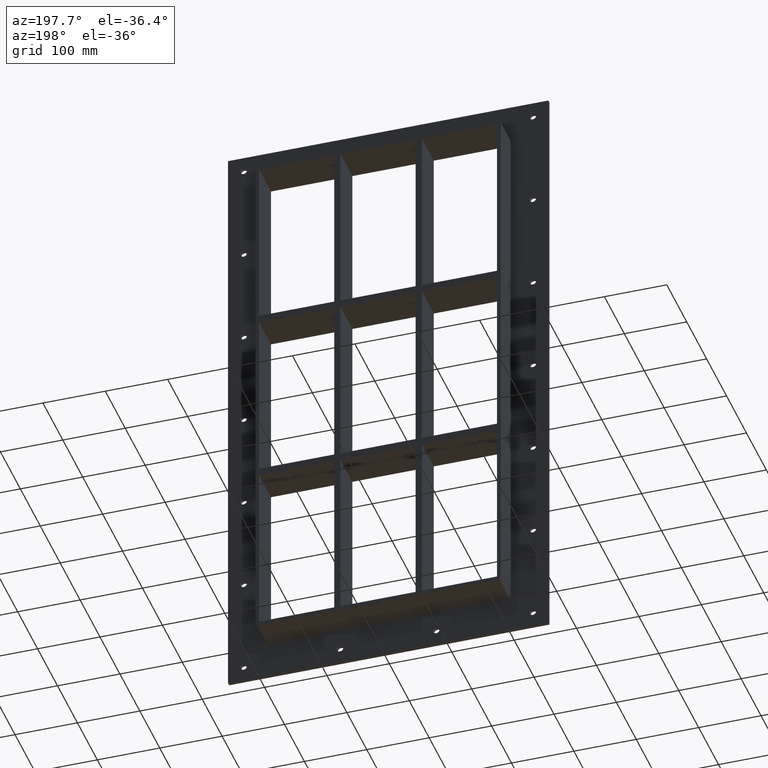
[diagram: clean part render]
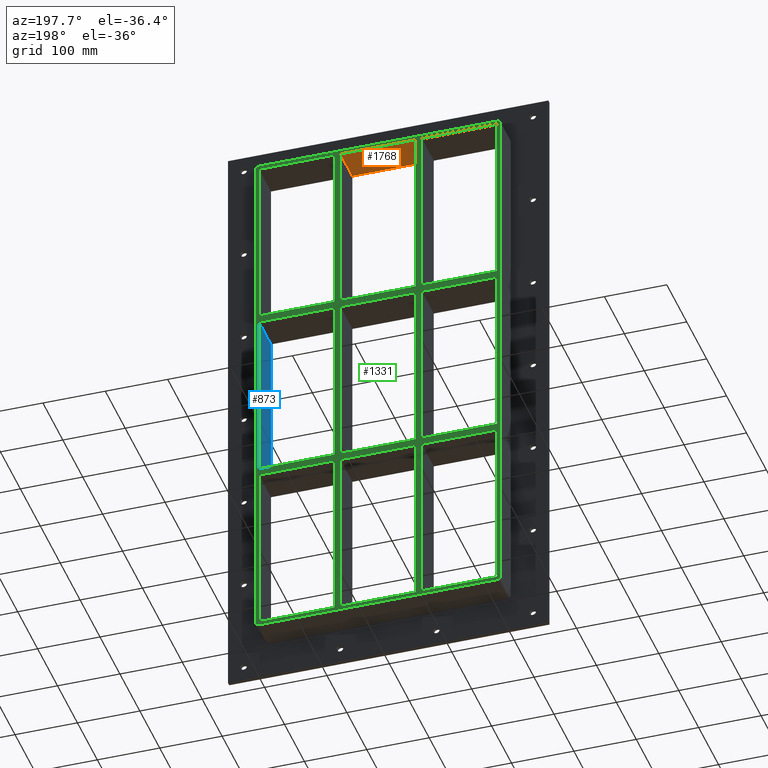
[diagram: same view with three faces highlighted in distinct colors, each labeled with its STEP entity id]
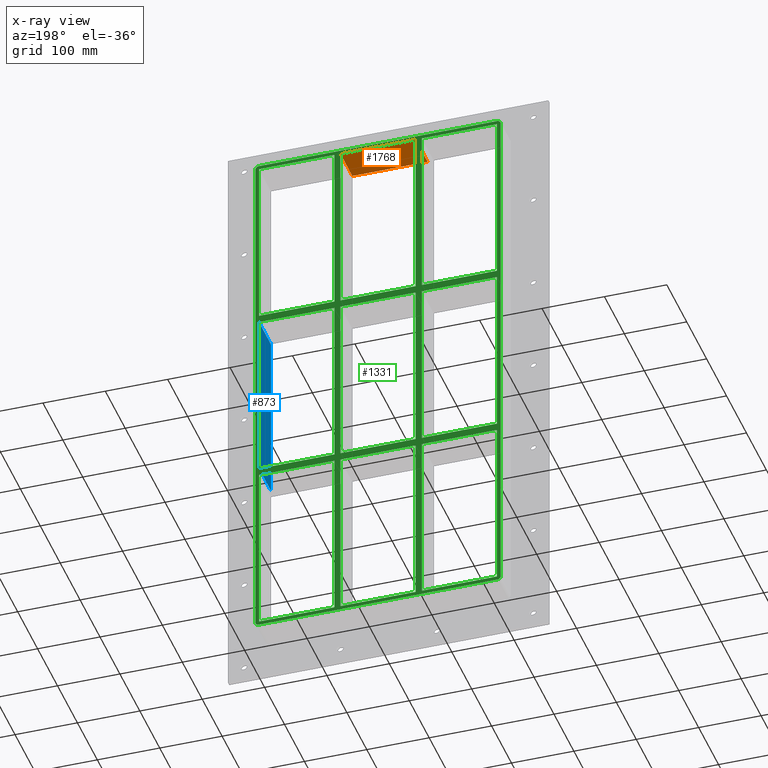
[diagram: x-ray of the same camera — body ghosted, the three highlighted faces saturated]
A machine part, auxiliary view with three faces highlighted in distinct colors.
The next image is the same camera in x-ray (body ghosted, the three faces saturated) — at least one of them is partly hidden behind the body in this view.
Their STEP definitions:

[orange] entity #1768 — the highlighted planar face has unit normal (0, 0, 1).
#911=CARTESIAN_POINT('',(60.249999999997819,-3.0,429.00000000000006));
#912=VERTEX_POINT('',#911);
#919=CARTESIAN_POINT('',(60.249999999997819,57.0,429.00000000000006));
#920=VERTEX_POINT('',#919);
#921=CARTESIAN_POINT('',(60.249999999997819,57.000000000000007,429.00000000000006));
#922=DIRECTION('',(0.0,-1.0,0.0));
#923=VECTOR('',#922,60.000000000000007);
#924=LINE('',#921,#923);
#925=EDGE_CURVE('',#920,#912,#924,.T.);
#1035=CARTESIAN_POINT('',(-60.249999999996362,57.0,429.00000000000006));
#1036=VERTEX_POINT('',#1035);
#1043=CARTESIAN_POINT('',(-60.249999999996362,-3.0,429.00000000000006));
#1044=VERTEX_POINT('',#1043);
#1045=CARTESIAN_POINT('',(-60.249999999996362,-3.0,429.00000000000006));
#1046=DIRECTION('',(0.0,1.0,0.0));
#1047=VECTOR('',#1046,60.000000000000007);
#1048=LINE('',#1045,#1047);
#1049=EDGE_CURVE('',#1044,#1036,#1048,.T.);
#1165=CARTESIAN_POINT('',(60.249999999997826,57.0,429.00000000000006));
#1166=DIRECTION('',(-1.0,0.0,0.0));
#1167=VECTOR('',#1166,120.49999999999419);
#1168=LINE('',#1165,#1167);
#1169=EDGE_CURVE('',#920,#1036,#1168,.T.);
#1607=CARTESIAN_POINT('',(-60.249999999996362,-3.0,429.00000000000006));
#1608=DIRECTION('',(1.0,0.0,0.0));
#1609=VECTOR('',#1608,120.49999999999419);
#1610=LINE('',#1607,#1609);
#1611=EDGE_CURVE('',#1044,#912,#1610,.T.);
#1757=CARTESIAN_POINT('',(-190.75000000000003,0.0,429.00000000000006));
#1758=DIRECTION('',(0.0,0.0,1.0));
#1759=DIRECTION('',(1.0,0.0,0.0));
#1760=AXIS2_PLACEMENT_3D('',#1757,#1758,#1759);
#1761=PLANE('',#1760);
#1762=ORIENTED_EDGE('',*,*,#925,.T.);
#1763=ORIENTED_EDGE('',*,*,#1611,.F.);
#1764=ORIENTED_EDGE('',*,*,#1049,.T.);
#1765=ORIENTED_EDGE('',*,*,#1169,.F.);
#1766=EDGE_LOOP('',(#1762,#1763,#1764,#1765));
#1767=FACE_OUTER_BOUND('',#1766,.T.);
#1768=ADVANCED_FACE('',(#1767),#1761,.F.);

[blue] entity #873 — the highlighted planar face has unit normal (1, 0, 0).
#627=CARTESIAN_POINT('',(190.75000000000728,57.0,138.9999999999898));
#628=VERTEX_POINT('',#627);
#635=CARTESIAN_POINT('',(190.75000000000728,-3.0,138.9999999999898));
#636=VERTEX_POINT('',#635);
#637=CARTESIAN_POINT('',(190.75000000000011,-3.0,138.99999999998983));
#638=DIRECTION('',(0.0,1.0,0.0));
#639=VECTOR('',#638,60.000000000000007);
#640=LINE('',#637,#639);
#641=EDGE_CURVE('',#636,#628,#640,.T.);
#843=CARTESIAN_POINT('',(190.75000000000011,0.0,429.00000000000006));
#844=DIRECTION('',(1.0,0.0,0.0));
#845=DIRECTION('',(0.0,0.0,-1.0));
#846=AXIS2_PLACEMENT_3D('',#843,#844,#845);
#847=PLANE('',#846);
#848=ORIENTED_EDGE('',*,*,#641,.T.);
#849=CARTESIAN_POINT('',(190.75000000000023,57.0,-138.99999999999977));
#850=VERTEX_POINT('',#849);
#851=CARTESIAN_POINT('',(190.75000000000011,57.0,-138.99999999999974));
#852=DIRECTION('',(0.0,0.0,1.0));
#853=VECTOR('',#852,277.99999999998954);
#854=LINE('',#851,#853);
#855=EDGE_CURVE('',#850,#628,#854,.T.);
#856=ORIENTED_EDGE('',*,*,#855,.F.);
#857=CARTESIAN_POINT('',(190.75000000000023,-3.0,-138.99999999999977));
#858=VERTEX_POINT('',#857);
#859=CARTESIAN_POINT('',(190.75000000000011,57.000000000000007,-138.99999999999977));
#860=DIRECTION('',(0.0,-1.0,0.0));
#861=VECTOR('',#860,60.000000000000007);
#862=LINE('',#859,#861);
#863=EDGE_CURVE('',#850,#858,#862,.T.);
#864=ORIENTED_EDGE('',*,*,#863,.T.);
#865=CARTESIAN_POINT('',(190.75000000000011,-3.0,138.99999999998983));
#866=DIRECTION('',(0.0,0.0,-1.0));
#867=VECTOR('',#866,277.99999999998954);
#868=LINE('',#865,#867);
#869=EDGE_CURVE('',#636,#858,#868,.T.);
#870=ORIENTED_EDGE('',*,*,#869,.F.);
#871=EDGE_LOOP('',(#848,#856,#864,#870));
#872=FACE_OUTER_BOUND('',#871,.T.);
#873=ADVANCED_FACE('',(#872),#847,.F.);

[green] entity #1331 — the highlighted planar face has unit normal (0, 1, 0).
#579=CARTESIAN_POINT('',(-70.250000000002132,57.0,138.99999999998983));
#580=VERTEX_POINT('',#579);
#595=CARTESIAN_POINT('',(-190.75000000000045,57.0,138.99999999998983));
#596=VERTEX_POINT('',#595);
#603=CARTESIAN_POINT('',(-70.250000000002103,57.0,138.9999999999898));
#604=DIRECTION('',(-1.0,0.0,0.0));
#605=VECTOR('',#604,120.49999999999835);
#606=LINE('',#603,#605);
#607=EDGE_CURVE('',#580,#596,#606,.T.);
#617=CARTESIAN_POINT('',(70.250000000003638,57.0,138.9999999999898));
#618=VERTEX_POINT('',#617);
#627=CARTESIAN_POINT('',(190.75000000000728,57.0,138.9999999999898));
#628=VERTEX_POINT('',#627);
#629=CARTESIAN_POINT('',(190.75000000000728,57.0,138.9999999999898));
#630=DIRECTION('',(-1.0,0.0,0.0));
#631=VECTOR('',#630,120.50000000000364);
#632=LINE('',#629,#631);
#633=EDGE_CURVE('',#628,#618,#632,.T.);
#659=CARTESIAN_POINT('',(60.249999999997868,57.0,138.9999999999898));
#660=VERTEX_POINT('',#659);
#675=CARTESIAN_POINT('',(-60.249999999996362,57.0,138.99999999998983));
#676=VERTEX_POINT('',#675);
#683=CARTESIAN_POINT('',(60.249999999997868,57.0,138.9999999999898));
#684=DIRECTION('',(-1.0,0.0,0.0));
#685=VECTOR('',#684,120.49999999999423);
#686=LINE('',#683,#685);
#687=EDGE_CURVE('',#660,#676,#686,.T.);
#697=CARTESIAN_POINT('',(-70.250000000002132,57.0,151.0));
#698=VERTEX_POINT('',#697);
#707=CARTESIAN_POINT('',(-190.75000000000045,57.0,150.99999999999994));
#708=VERTEX_POINT('',#707);
#709=CARTESIAN_POINT('',(-190.75000000000045,57.0,150.99999999999994));
#710=DIRECTION('',(1.0,0.0,0.0));
#711=VECTOR('',#710,120.49999999999832);
#712=LINE('',#709,#711);
#713=EDGE_CURVE('',#708,#698,#712,.T.);
#739=CARTESIAN_POINT('',(70.250000000003638,57.0,151.00000000000014));
#740=VERTEX_POINT('',#739);
#755=CARTESIAN_POINT('',(190.75000000000023,57.0,151.00000000000023));
#756=VERTEX_POINT('',#755);
#763=CARTESIAN_POINT('',(70.250000000003638,57.0,151.00000000000014));
#764=DIRECTION('',(1.0,0.0,0.0));
#765=VECTOR('',#764,120.49999999999659);
#766=LINE('',#763,#765);
#767=EDGE_CURVE('',#740,#756,#766,.T.);
#777=CARTESIAN_POINT('',(60.24999999999789,57.0,151.00000000000014));
#778=VERTEX_POINT('',#777);
#787=CARTESIAN_POINT('',(-60.249999999996362,57.0,151.00000000000006));
#788=VERTEX_POINT('',#787);
#789=CARTESIAN_POINT('',(-60.249999999996362,57.0,151.00000000000003));
#790=DIRECTION('',(1.0,0.0,0.0));
#791=VECTOR('',#790,120.49999999999426);
#792=LINE('',#789,#791);
#793=EDGE_CURVE('',#788,#778,#792,.T.);
#818=CARTESIAN_POINT('',(-190.75000000000003,57.0,429.00000000000006));
#819=VERTEX_POINT('',#818);
#820=CARTESIAN_POINT('',(-190.75000000000003,57.0,429.00000000000011));
#821=DIRECTION('',(0.0,0.0,-1.0));
#822=VECTOR('',#821,278.00000000000011);
#823=LINE('',#820,#822);
#824=EDGE_CURVE('',#819,#708,#823,.T.);
#849=CARTESIAN_POINT('',(190.75000000000023,57.0,-138.99999999999977));
#850=VERTEX_POINT('',#849);
#851=CARTESIAN_POINT('',(190.75000000000011,57.0,-138.99999999999974));
#852=DIRECTION('',(0.0,0.0,1.0));
#853=VECTOR('',#852,277.99999999998954);
#854=LINE('',#851,#853);
#855=EDGE_CURVE('',#850,#628,#854,.T.);
#888=CARTESIAN_POINT('',(190.75000000000011,57.0,429.00000000000006));
#889=VERTEX_POINT('',#888);
#896=CARTESIAN_POINT('',(190.75000000000011,57.0,151.00000000000023));
#897=DIRECTION('',(0.0,0.0,1.0));
#898=VECTOR('',#897,277.99999999999983);
#899=LINE('',#896,#898);
#900=EDGE_CURVE('',#756,#889,#899,.T.);
#919=CARTESIAN_POINT('',(60.249999999997819,57.0,429.00000000000006));
#920=VERTEX_POINT('',#919);
#927=CARTESIAN_POINT('',(60.249999999997875,57.0,151.00000000000017));
#928=DIRECTION('',(0.0,0.0,1.0));
#929=VECTOR('',#928,277.99999999999989);
#930=LINE('',#927,#929);
#931=EDGE_CURVE('',#778,#920,#930,.T.);
#942=CARTESIAN_POINT('',(70.250000000003638,57.0,429.00000000000006));
#943=VERTEX_POINT('',#942);
#944=CARTESIAN_POINT('',(70.250000000003638,57.0,429.00000000000006));
#945=DIRECTION('',(0.0,0.0,-1.0));
#946=VECTOR('',#945,277.99999999999989);
#947=LINE('',#944,#946);
#948=EDGE_CURVE('',#943,#740,#947,.T.);
#981=CARTESIAN_POINT('',(-70.250000000002188,57.0,429.00000000000006));
#982=VERTEX_POINT('',#981);
#989=CARTESIAN_POINT('',(-70.250000000002132,57.0,151.00000000000006));
#990=DIRECTION('',(0.0,0.0,1.0));
#991=VECTOR('',#990,278.0);
#992=LINE('',#989,#991);
#993=EDGE_CURVE('',#698,#982,#992,.T.);
#1004=CARTESIAN_POINT('',(-70.250000000002061,57.0,-138.99999999999997));
#1005=VERTEX_POINT('',#1004);
#1006=CARTESIAN_POINT('',(-70.250000000002075,57.0,-139.0));
#1007=DIRECTION('',(0.0,0.0,1.0));
#1008=VECTOR('',#1007,277.99999999998983);
#1009=LINE('',#1006,#1008);
#1010=EDGE_CURVE('',#1005,#580,#1009,.T.);
#1035=CARTESIAN_POINT('',(-60.249999999996362,57.0,429.00000000000006));
#1036=VERTEX_POINT('',#1035);
#1037=CARTESIAN_POINT('',(-60.249999999996362,57.0,429.00000000000006));
#1038=DIRECTION('',(0.0,0.0,-1.0));
#1039=VECTOR('',#1038,278.0);
#1040=LINE('',#1037,#1039);
#1041=EDGE_CURVE('',#1036,#788,#1040,.T.);
#1060=CARTESIAN_POINT('',(0.0,57.0,0.0));
#1061=DIRECTION('',(0.0,1.0,0.0));
#1062=DIRECTION('',(0.0,0.0,1.0));
#1063=AXIS2_PLACEMENT_3D('',#1060,#1061,#1062);
#1064=PLANE('',#1063);
#1065=CARTESIAN_POINT('',(190.75000000000003,57.0,-435.00000000000006));
#1066=VERTEX_POINT('',#1065);
#1067=CARTESIAN_POINT('',(196.75000000000006,57.0,-429.0));
#1068=VERTEX_POINT('',#1067);
#1069=CARTESIAN_POINT('',(190.75000000000003,57.0,-429.00000000000006));
#1070=DIRECTION('',(0.0,-1.0,0.0));
#1071=DIRECTION('',(0.707106781186552,0.0,-0.707106781186543));
#1072=AXIS2_PLACEMENT_3D('',#1069,#1070,#1071);
#1073=CIRCLE('',#1072,6.000000000000001);
#1074=EDGE_CURVE('',#1066,#1068,#1073,.T.);
#1075=ORIENTED_EDGE('',*,*,#1074,.F.);
#1076=CARTESIAN_POINT('',(-190.75000000000003,57.0,-435.00000000000006));
#1077=VERTEX_POINT('',#1076);
#1078=CARTESIAN_POINT('',(190.75000000000006,57.0,-435.00000000000006));
#1079=DIRECTION('',(-1.0,0.0,0.0));
#1080=VECTOR('',#1079,381.50000000000006);
#1081=LINE('',#1078,#1080);
#1082=EDGE_CURVE('',#1066,#1077,#1081,.T.);
#1083=ORIENTED_EDGE('',*,*,#1082,.T.);
#1084=CARTESIAN_POINT('',(-196.75000000000006,57.0,-429.00000000000006));
#1085=VERTEX_POINT('',#1084);
#1086=CARTESIAN_POINT('',(-190.75000000000003,57.0,-429.00000000000006));
#1087=DIRECTION('',(0.0,-1.0,0.0));
#1088=DIRECTION('',(-0.707106781186552,0.0,-0.707106781186543));
#1089=AXIS2_PLACEMENT_3D('',#1086,#1087,#1088);
#1090=CIRCLE('',#1089,6.000000000000001);
#1091=EDGE_CURVE('',#1085,#1077,#1090,.T.);
#1092=ORIENTED_EDGE('',*,*,#1091,.F.);
#1093=CARTESIAN_POINT('',(-196.75000000000006,57.0,429.0));
#1094=VERTEX_POINT('',#1093);
#1095=CARTESIAN_POINT('',(-196.75000000000006,57.0,-429.00000000000006));
#1096=DIRECTION('',(0.0,0.0,1.0));
#1097=VECTOR('',#1096,858.0);
#1098=LINE('',#1095,#1097);
#1099=EDGE_CURVE('',#1085,#1094,#1098,.T.);
#1100=ORIENTED_EDGE('',*,*,#1099,.T.);
#1101=CARTESIAN_POINT('',(-190.75000000000003,57.0,435.00000000000006));
#1102=VERTEX_POINT('',#1101);
#1103=CARTESIAN_POINT('',(-190.75000000000003,57.0,429.00000000000006));
#1104=DIRECTION('',(0.0,-1.0,0.0));
#1105=DIRECTION('',(-0.707106781186552,0.0,0.707106781186543));
#1106=AXIS2_PLACEMENT_3D('',#1103,#1104,#1105);
#1107=CIRCLE('',#1106,6.000000000000001);
#1108=EDGE_CURVE('',#1102,#1094,#1107,.T.);
#1109=ORIENTED_EDGE('',*,*,#1108,.F.);
#1110=CARTESIAN_POINT('',(190.75000000000003,57.0,435.00000000000006));
#1111=VERTEX_POINT('',#1110);
#1112=CARTESIAN_POINT('',(-190.75000000000006,57.0,435.00000000000006));
#1113=DIRECTION('',(1.0,0.0,0.0));
#1114=VECTOR('',#1113,381.50000000000006);
#1115=LINE('',#1112,#1114);
#1116=EDGE_CURVE('',#1102,#1111,#1115,.T.);
#1117=ORIENTED_EDGE('',*,*,#1116,.T.);
#1118=CARTESIAN_POINT('',(196.75000000000006,57.0,429.00000000000006));
#1119=VERTEX_POINT('',#1118);
#1120=CARTESIAN_POINT('',(190.75000000000003,57.0,429.00000000000006));
#1121=DIRECTION('',(0.0,-1.0,0.0));
#1122=DIRECTION('',(0.707106781186552,0.0,0.707106781186543));
#1123=AXIS2_PLACEMENT_3D('',#1120,#1121,#1122);
#1124=CIRCLE('',#1123,6.000000000000001);
#1125=EDGE_CURVE('',#1119,#1111,#1124,.T.);
#1126=ORIENTED_EDGE('',*,*,#1125,.F.);
#1127=CARTESIAN_POINT('',(196.75000000000006,57.0,429.00000000000006));
#1128=DIRECTION('',(0.0,0.0,-1.0));
#1129=VECTOR('',#1128,858.0);
#1130=LINE('',#1127,#1129);
#1131=EDGE_CURVE('',#1119,#1068,#1130,.T.);
#1132=ORIENTED_EDGE('',*,*,#1131,.T.);
#1133=EDGE_LOOP('',(#1075,#1083,#1092,#1100,#1109,#1117,#1126,#1132));
#1134=FACE_OUTER_BOUND('',#1133,.T.);
#1135=CARTESIAN_POINT('',(-190.75000000000045,57.0,-139.00000000000006));
#1136=VERTEX_POINT('',#1135);
#1137=CARTESIAN_POINT('',(-190.75000000000003,57.0,138.99999999998985));
#1138=DIRECTION('',(0.0,0.0,-1.0));
#1139=VECTOR('',#1138,277.99999999998988);
#1140=LINE('',#1137,#1139);
#1141=EDGE_CURVE('',#596,#1136,#1140,.T.);
#1142=ORIENTED_EDGE('',*,*,#1141,.T.);
#1143=CARTESIAN_POINT('',(-190.75000000000045,57.0,-139.00000000000006));
#1144=DIRECTION('',(1.0,0.0,0.0));
#1145=VECTOR('',#1144,120.49999999999839);
#1146=LINE('',#1143,#1145);
#1147=EDGE_CURVE('',#1136,#1005,#1146,.T.);
#1148=ORIENTED_EDGE('',*,*,#1147,.T.);
#1149=ORIENTED_EDGE('',*,*,#1010,.T.);
#1150=ORIENTED_EDGE('',*,*,#607,.T.);
#1151=EDGE_LOOP('',(#1142,#1148,#1149,#1150));
#1152=FACE_BOUND('',#1151,.T.);
#1153=ORIENTED_EDGE('',*,*,#900,.T.);
#1154=CARTESIAN_POINT('',(190.75000000000011,57.0,429.00000000000006));
#1155=DIRECTION('',(-1.0,0.0,0.0));
#1156=VECTOR('',#1155,120.49999999999646);
#1157=LINE('',#1154,#1156);
#1158=EDGE_CURVE('',#889,#943,#1157,.T.);
#1159=ORIENTED_EDGE('',*,*,#1158,.T.);
#1160=ORIENTED_EDGE('',*,*,#948,.T.);
#1161=ORIENTED_EDGE('',*,*,#767,.T.);
#1162=EDGE_LOOP('',(#1153,#1159,#1160,#1161));
#1163=FACE_BOUND('',#1162,.T.);
#1164=ORIENTED_EDGE('',*,*,#931,.T.);
#1165=CARTESIAN_POINT('',(60.249999999997826,57.0,429.00000000000006));
#1166=DIRECTION('',(-1.0,0.0,0.0));
#1167=VECTOR('',#1166,120.49999999999419);
#1168=LINE('',#1165,#1167);
#1169=EDGE_CURVE('',#920,#1036,#1168,.T.);
#1170=ORIENTED_EDGE('',*,*,#1169,.T.);
#1171=ORIENTED_EDGE('',*,*,#1041,.T.);
#1172=ORIENTED_EDGE('',*,*,#793,.T.);
#1173=EDGE_LOOP('',(#1164,#1170,#1171,#1172));
#1174=FACE_BOUND('',#1173,.T.);
#1175=ORIENTED_EDGE('',*,*,#633,.T.);
#1176=CARTESIAN_POINT('',(70.250000000003638,57.0,-138.99999999999983));
#1177=VERTEX_POINT('',#1176);
#1178=CARTESIAN_POINT('',(70.250000000003638,57.0,138.99999999998983));
#1179=DIRECTION('',(0.0,0.0,-1.0));
#1180=VECTOR('',#1179,277.99999999998965);
#1181=LINE('',#1178,#1180);
#1182=EDGE_CURVE('',#618,#1177,#1181,.T.);
#1183=ORIENTED_EDGE('',*,*,#1182,.T.);
#1184=CARTESIAN_POINT('',(70.250000000003638,57.0,-138.99999999999986));
#1185=DIRECTION('',(1.0,0.0,0.0));
#1186=VECTOR('',#1185,120.49999999999659);
#1187=LINE('',#1184,#1186);
#1188=EDGE_CURVE('',#1177,#850,#1187,.T.);
#1189=ORIENTED_EDGE('',*,*,#1188,.T.);
#1190=ORIENTED_EDGE('',*,*,#855,.T.);
#1191=EDGE_LOOP('',(#1175,#1183,#1189,#1190));
#1192=FACE_BOUND('',#1191,.T.);
#1193=ORIENTED_EDGE('',*,*,#687,.T.);
#1194=CARTESIAN_POINT('',(-60.249999999996362,57.0,-138.99999999999997));
#1195=VERTEX_POINT('',#1194);
#1196=CARTESIAN_POINT('',(-60.249999999996362,57.0,138.99999999998983));
#1197=DIRECTION('',(0.0,0.0,-1.0));
#1198=VECTOR('',#1197,277.99999999998977);
#1199=LINE('',#1196,#1198);
#1200=EDGE_CURVE('',#676,#1195,#1199,.T.);
#1201=ORIENTED_EDGE('',*,*,#1200,.T.);
#1202=CARTESIAN_POINT('',(60.249999999997932,57.0,-138.99999999999989));
#1203=VERTEX_POINT('',#1202);
#1204=CARTESIAN_POINT('',(-60.249999999996362,57.0,-138.99999999999997));
#1205=DIRECTION('',(1.0,0.0,0.0));
#1206=VECTOR('',#1205,120.49999999999429);
#1207=LINE('',#1204,#1206);
#1208=EDGE_CURVE('',#1195,#1203,#1207,.T.);
#1209=ORIENTED_EDGE('',*,*,#1208,.T.);
#1210=CARTESIAN_POINT('',(60.249999999997939,57.0,-138.99999999999989));
#1211=DIRECTION('',(0.0,0.0,1.0));
#1212=VECTOR('',#1211,277.99999999998971);
#1213=LINE('',#1210,#1212);
#1214=EDGE_CURVE('',#1203,#660,#1213,.T.);
#1215=ORIENTED_EDGE('',*,*,#1214,.T.);
#1216=EDGE_LOOP('',(#1193,#1201,#1209,#1215));
#1217=FACE_BOUND('',#1216,.T.);
#1218=CARTESIAN_POINT('',(-190.75000000000045,57.0,-151.00000000001017));
#1219=VERTEX_POINT('',#1218);
#1220=CARTESIAN_POINT('',(-190.75000000000003,57.0,-429.00000000000006));
#1221=VERTEX_POINT('',#1220);
#1222=CARTESIAN_POINT('',(-190.75000000000003,57.0,-151.00000000001017));
#1223=DIRECTION('',(0.0,0.0,-1.0));
#1224=VECTOR('',#1223,277.99999999998988);
#1225=LINE('',#1222,#1224);
#1226=EDGE_CURVE('',#1219,#1221,#1225,.T.);
#1227=ORIENTED_EDGE('',*,*,#1226,.T.);
#1228=CARTESIAN_POINT('',(-70.250000000002018,57.0,-429.00000000000006));
#1229=VERTEX_POINT('',#1228);
#1230=CARTESIAN_POINT('',(-190.75,57.0,-429.00000000000006));
#1231=DIRECTION('',(1.0,0.0,0.0));
#1232=VECTOR('',#1231,120.49999999999801);
#1233=LINE('',#1230,#1232);
#1234=EDGE_CURVE('',#1221,#1229,#1233,.T.);
#1235=ORIENTED_EDGE('',*,*,#1234,.T.);
#1236=CARTESIAN_POINT('',(-70.250000000002075,57.0,-151.00000000001017));
#1237=VERTEX_POINT('',#1236);
#1238=CARTESIAN_POINT('',(-70.250000000002018,57.0,-429.00000000000006));
#1239=DIRECTION('',(0.0,0.0,1.0));
#1240=VECTOR('',#1239,277.99999999998988);
#1241=LINE('',#1238,#1240);
#1242=EDGE_CURVE('',#1229,#1237,#1241,.T.);
#1243=ORIENTED_EDGE('',*,*,#1242,.T.);
#1244=CARTESIAN_POINT('',(-70.250000000002103,57.0,-151.0000000000102));
#1245=DIRECTION('',(-1.0,0.0,0.0));
#1246=VECTOR('',#1245,120.49999999999835);
#1247=LINE('',#1244,#1246);
#1248=EDGE_CURVE('',#1237,#1219,#1247,.T.);
#1249=ORIENTED_EDGE('',*,*,#1248,.T.);
#1250=EDGE_LOOP('',(#1227,#1235,#1243,#1249));
#1251=FACE_BOUND('',#1250,.T.);
#1252=CARTESIAN_POINT('',(60.249999999997996,57.0,-429.00000000000006));
#1253=VERTEX_POINT('',#1252);
#1254=CARTESIAN_POINT('',(60.249999999997939,57.0,-151.00000000001017));
#1255=VERTEX_POINT('',#1254);
#1256=CARTESIAN_POINT('',(60.249999999997996,57.0,-429.00000000000006));
#1257=DIRECTION('',(0.0,0.0,1.0));
#1258=VECTOR('',#1257,277.99999999998988);
#1259=LINE('',#1256,#1258);
#1260=EDGE_CURVE('',#1253,#1255,#1259,.T.);
#1261=ORIENTED_EDGE('',*,*,#1260,.T.);
#1262=CARTESIAN_POINT('',(-60.249999999996362,57.0,-151.00000000001017));
#1263=VERTEX_POINT('',#1262);
#1264=CARTESIAN_POINT('',(60.249999999997954,57.0,-151.0000000000102));
#1265=DIRECTION('',(-1.0,0.0,0.0));
#1266=VECTOR('',#1265,120.49999999999432);
#1267=LINE('',#1264,#1266);
#1268=EDGE_CURVE('',#1255,#1263,#1267,.T.);
#1269=ORIENTED_EDGE('',*,*,#1268,.T.);
#1270=CARTESIAN_POINT('',(-60.249999999996362,57.0,-428.99999999998641));
#1271=VERTEX_POINT('',#1270);
#1272=CARTESIAN_POINT('',(-60.249999999996362,57.0,-151.00000000001017));
#1273=DIRECTION('',(0.0,0.0,-1.0));
#1274=VECTOR('',#1273,277.99999999997624);
#1275=LINE('',#1272,#1274);
#1276=EDGE_CURVE('',#1263,#1271,#1275,.T.);
#1277=ORIENTED_EDGE('',*,*,#1276,.T.);
#1278=CARTESIAN_POINT('',(-60.249999999996362,57.0,-429.00000000000006));
#1279=DIRECTION('',(1.0,0.0,0.0));
#1280=VECTOR('',#1279,120.49999999999437);
#1281=LINE('',#1278,#1280);
#1282=EDGE_CURVE('',#1271,#1253,#1281,.T.);
#1283=ORIENTED_EDGE('',*,*,#1282,.T.);
#1284=EDGE_LOOP('',(#1261,#1269,#1277,#1283));
#1285=FACE_BOUND('',#1284,.T.);
#1286=ORIENTED_EDGE('',*,*,#713,.T.);
#1287=ORIENTED_EDGE('',*,*,#993,.T.);
#1288=CARTESIAN_POINT('',(-70.250000000002188,57.0,429.00000000000006));
#1289=DIRECTION('',(-1.0,0.0,0.0));
#1290=VECTOR('',#1289,120.49999999999784);
#1291=LINE('',#1288,#1290);
#1292=EDGE_CURVE('',#982,#819,#1291,.T.);
#1293=ORIENTED_EDGE('',*,*,#1292,.T.);
#1294=ORIENTED_EDGE('',*,*,#824,.T.);
#1295=EDGE_LOOP('',(#1286,#1287,#1293,#1294));
#1296=FACE_BOUND('',#1295,.T.);
#1297=CARTESIAN_POINT('',(70.250000000003638,57.0,-428.99999999998641));
#1298=VERTEX_POINT('',#1297);
#1299=CARTESIAN_POINT('',(190.75000000000011,57.0,-429.00000000000006));
#1300=VERTEX_POINT('',#1299);
#1301=CARTESIAN_POINT('',(70.250000000003652,57.0,-429.00000000000006));
#1302=DIRECTION('',(1.0,0.0,0.0));
#1303=VECTOR('',#1302,120.49999999999646);
#1304=LINE('',#1301,#1303);
#1305=EDGE_CURVE('',#1298,#1300,#1304,.T.);
#1306=ORIENTED_EDGE('',*,*,#1305,.T.);
#1307=CARTESIAN_POINT('',(190.75000000000728,57.0,-151.0000000000102));
#1308=VERTEX_POINT('',#1307);
#1309=CARTESIAN_POINT('',(190.75000000000011,57.0,-429.00000000000011));
#1310=DIRECTION('',(0.0,0.0,1.0));
#1311=VECTOR('',#1310,277.99999999998988);
#1312=LINE('',#1309,#1311);
#1313=EDGE_CURVE('',#1300,#1308,#1312,.T.);
#1314=ORIENTED_EDGE('',*,*,#1313,.T.);
#1315=CARTESIAN_POINT('',(70.250000000003638,57.0,-151.00000000001017));
#1316=VERTEX_POINT('',#1315);
#1317=CARTESIAN_POINT('',(190.75000000000728,57.0,-151.0000000000102));
#1318=DIRECTION('',(-1.0,0.0,0.0));
#1319=VECTOR('',#1318,120.50000000000364);
#1320=LINE('',#1317,#1319);
#1321=EDGE_CURVE('',#1308,#1316,#1320,.T.);
#1322=ORIENTED_EDGE('',*,*,#1321,.T.);
#1323=CARTESIAN_POINT('',(70.250000000003638,57.0,-151.00000000001017));
#1324=DIRECTION('',(0.0,0.0,-1.0));
#1325=VECTOR('',#1324,277.99999999997624);
#1326=LINE('',#1323,#1325);
#1327=EDGE_CURVE('',#1316,#1298,#1326,.T.);
#1328=ORIENTED_EDGE('',*,*,#1327,.T.);
#1329=EDGE_LOOP('',(#1306,#1314,#1322,#1328));
#1330=FACE_BOUND('',#1329,.T.);
#1331=ADVANCED_FACE('',(#1134,#1152,#1163,#1174,#1192,#1217,#1251,#1285,#1296,#1330),#1064,.T.);